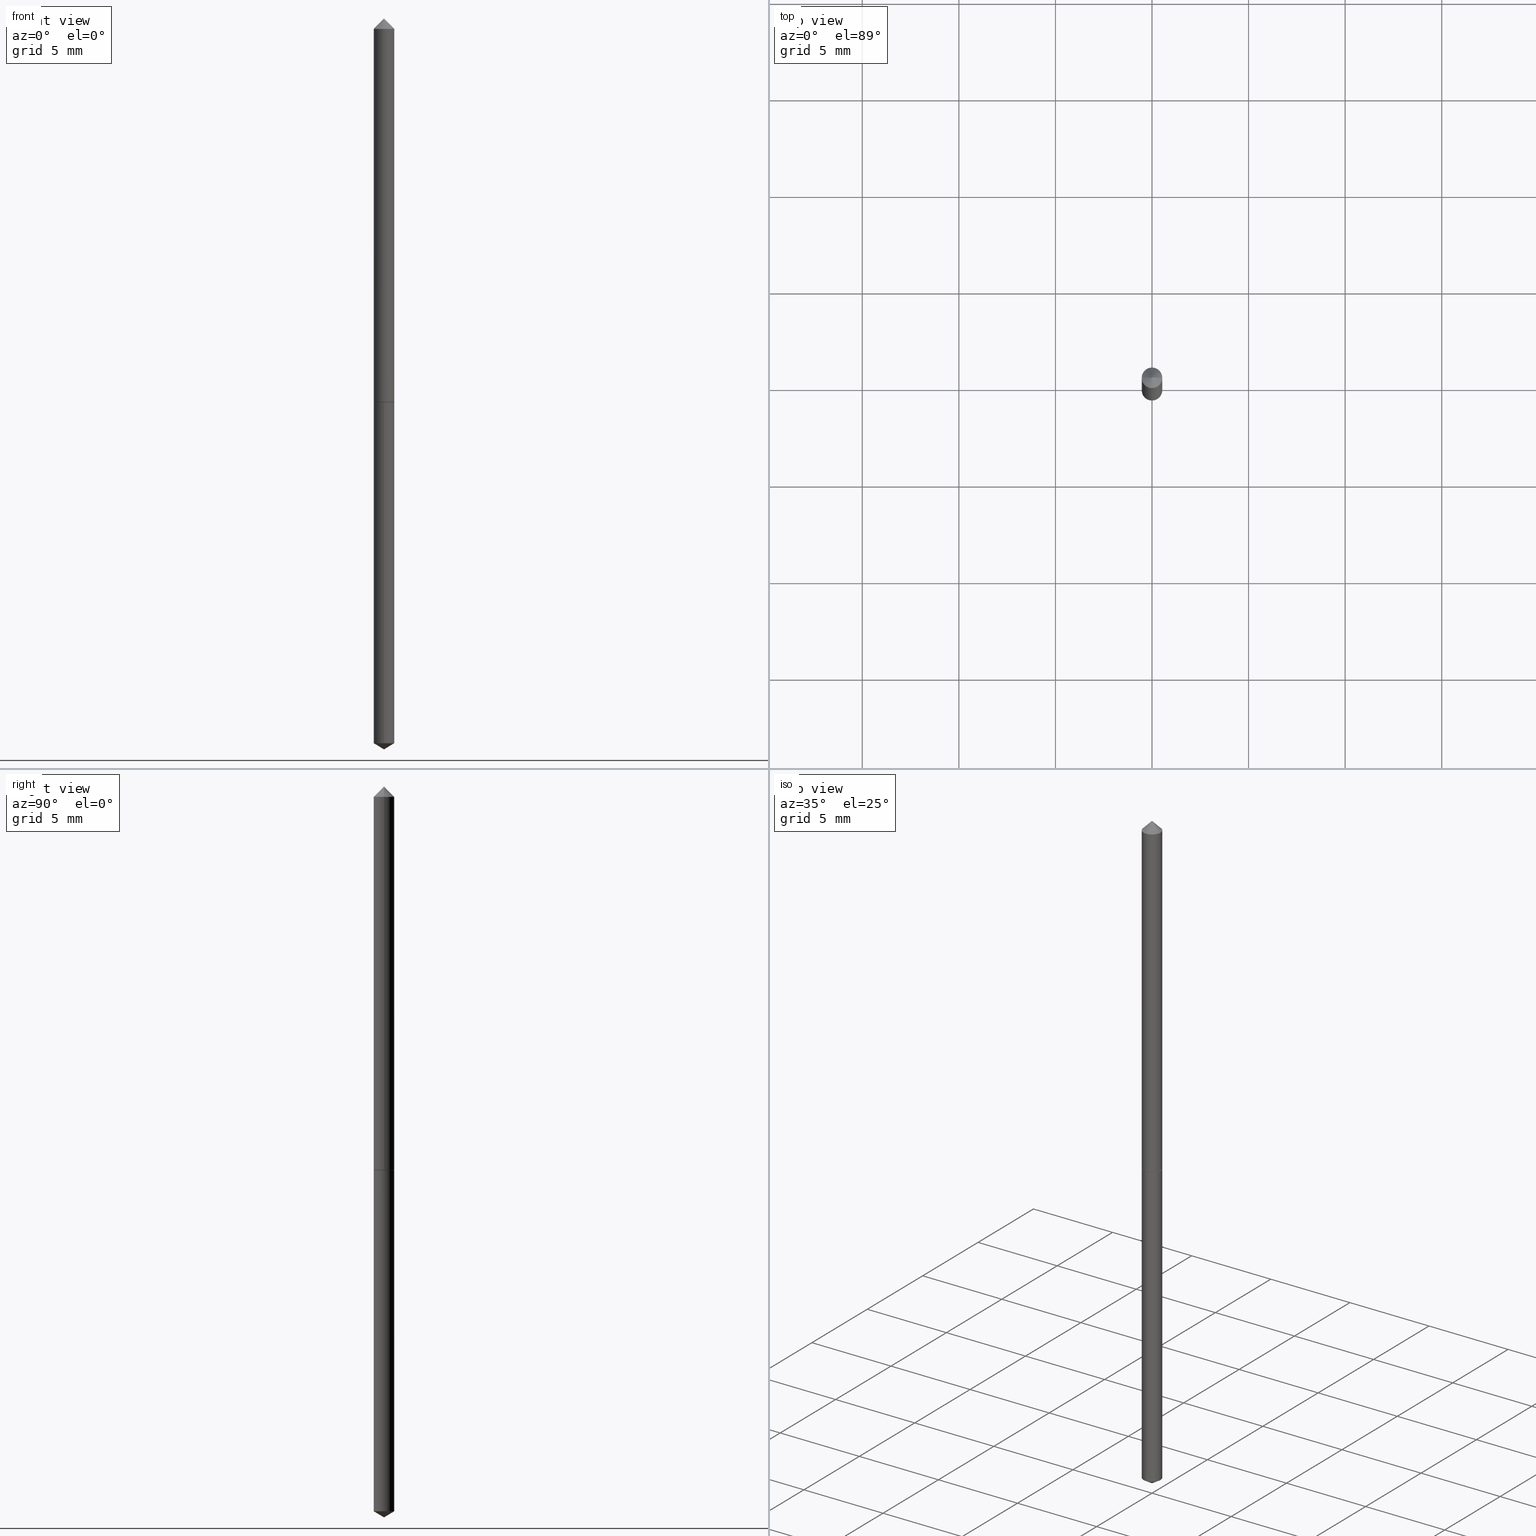
[diagram: canonical four-view strip — front | top / right | iso, engineering-drawing reading convention]
A machine part, canonical four-view strip (front | top / right | iso — engineering-drawing reading convention). The complete STEP part file that produces these views, byte-faithful:
ISO-10303-21;
HEADER;
FILE_DESCRIPTION (( 'STEP AP203' ),
    '1' );
FILE_NAME ('57100.STEP',
    '2024-04-22T22:08:45',
    ( '' ),
    ( '' ),
    'SwSTEP 2.0',
    'SolidWorks 2023',
    '' );
FILE_SCHEMA (( 'CONFIG_CONTROL_DESIGN' ));
ENDSEC;

DATA;
#1 = CARTESIAN_POINT ( 'NONE',  ( -0.02100000000000000824, 3.753342439256262871E-17, -0.03125000000000020817 ) ) ;
#2 = APPROVAL ( #357, 'UNSPECIFIED' ) ;
#3 = DIRECTION ( 'NONE',  ( -5.985567269335908147E-15, -0.8571673007021055612, 0.5150380749100652578 ) ) ;
#4 = CARTESIAN_POINT ( 'NONE',  ( 3.637357827753472311E-29, -5.193149454724271505E-15, -1.487381927000421156 ) ) ;
#5 = LOCAL_TIME ( 18, 8, 45.00000000000000000, #355 ) ;
#6 = MANIFOLD_SOLID_BREP ( 'Body-Move/Copy2[1]', #242 ) ;
#7 = CARTESIAN_POINT ( 'NONE',  ( 1.935588560095536193E-29, -2.763507479694350590E-15, -0.7915000000000002034 ) ) ;
#8 = ORIENTED_EDGE ( 'NONE', *, *, #346, .T. ) ;
#9 = DIRECTION ( 'NONE',  ( -2.445468806185136597E-29, 3.491481338843145583E-15, 1.000000000000000000 ) ) ;
#10 = VERTEX_POINT ( 'NONE', #68 ) ;
#11 = EDGE_CURVE ( 'NONE', #291, #173, #98, .T. ) ;
#12 = CONICAL_SURFACE ( 'NONE', #45, 0.02100000000000009845, 0.7853981633970726906 ) ;
#13 = CALENDAR_DATE ( 2024, 22, 4 ) ;
#14 = CALENDAR_DATE ( 2024, 22, 4 ) ;
#15 = ORIENTED_EDGE ( 'NONE', *, *, #122, .F. ) ;
#16 = DATE_AND_TIME ( #235, #259 ) ;
#17 = EDGE_LOOP ( 'NONE', ( #128, #23, #89, #185 ) ) ;
#18 = CC_DESIGN_PERSON_AND_ORGANIZATION_ASSIGNMENT ( #123, #206, ( #268 ) ) ;
#19 = CLOSED_SHELL ( 'NONE', ( #233, #93, #244, #223, #237, #217, #262 ) ) ;
#20 = DATE_AND_TIME ( #14, #282 ) ;
#21 = ORIENTED_EDGE ( 'NONE', *, *, #289, .F. ) ;
#22 = CALENDAR_DATE ( 2024, 22, 4 ) ;
#23 = ORIENTED_EDGE ( 'NONE', *, *, #76, .T. ) ;
#24 = ORIENTED_EDGE ( 'NONE', *, *, #141, .F. ) ;
#25 = LINE ( 'NONE', #1, #111 ) ;
#26 = AXIS2_PLACEMENT_3D ( 'NONE', #230, #115, #35 ) ;
#27 = PLANE ( 'NONE',  #179 ) ;
#28 = LINE ( 'NONE', #222, #161 ) ;
#29 = DIRECTION ( 'NONE',  ( 1.000000000000000000, -6.982962677686265922E-15, 4.876176775795935793E-29 ) ) ;
#30 = DIRECTION ( 'NONE',  ( -6.982962677686265922E-15, -1.000000000000000000, 3.468864327941669550E-15 ) ) ;
#31 = LINE ( 'NONE', #336, #231 ) ;
#32 = CARTESIAN_POINT ( 'NONE',  ( 0.02050000000000016392, -2.908403955256342486E-15, -0.7920000000000004814 ) ) ;
#33 = CIRCLE ( 'NONE', #229, 0.02100000000000009845 ) ;
#34 = CC_DESIGN_PERSON_AND_ORGANIZATION_ASSIGNMENT ( #347, #181, ( #268 ) ) ;
#35 = DIRECTION ( 'NONE',  ( 6.982962677686265922E-15, 1.000000000000000000, -3.491457197965155630E-15 ) ) ;
#36 = ORIENTED_EDGE ( 'NONE', *, *, #101, .T. ) ;
#37 = DIRECTION ( 'NONE',  ( -6.982962677686265133E-15, -1.000000000000000000, 0.000000000000000000 ) ) ;
#38 = ORIENTED_EDGE ( 'NONE', *, *, #131, .F. ) ;
#39 = CIRCLE ( 'NONE', #58, 0.02100000000000000477 ) ;
#40 = APPROVAL_DATE_TIME ( #265, #2 ) ;
#41 = VERTEX_POINT ( 'NONE', #42 ) ;
#42 = CARTESIAN_POINT ( 'NONE',  ( 2.506605526339781470E-31, -3.578768372314248100E-17, -0.01025000000000006635 ) ) ;
#43 = APPLICATION_PROTOCOL_DEFINITION ( 'international standard', 'config_control_design', 1994, #200 ) ;
#44 = ORIENTED_EDGE ( 'NONE', *, *, #280, .T. ) ;
#45 = AXIS2_PLACEMENT_3D ( 'NONE', #7, #114, #312 ) ;
#46 = COORDINATED_UNIVERSAL_TIME_OFFSET ( 5, 0, .BEHIND. ) ;
#47 = AXIS2_PLACEMENT_3D ( 'NONE', #258, #256, #60 ) ;
#48 = DIRECTION ( 'NONE',  ( -2.445485663670137245E-29, 3.491457197965155630E-15, 1.000000000000000000 ) ) ;
#49 = EDGE_LOOP ( 'NONE', ( #94, #207, #151 ) ) ;
#50 = LINE ( 'NONE', #333, #342 ) ;
#51 = CARTESIAN_POINT ( 'NONE',  ( 0.02100000000000009845, -2.910149695925762806E-15, -0.7915000000000002034 ) ) ;
#52 = APPROVAL_PERSON_ORGANIZATION ( #71, #324, #260 ) ;
#53 = CARTESIAN_POINT ( 'NONE',  ( 3.637357827753472311E-29, -5.193149454724271505E-15, -1.487381927000421156 ) ) ;
#54 = CARTESIAN_POINT ( 'NONE',  ( 1.492139745096575085E-16, 0.02099999999999723616, -0.7920000000000003704 ) ) ;
#55 = APPLICATION_CONTEXT ( 'configuration controlled 3d designs of mechanical parts and assemblies' ) ;
#56 = DIRECTION ( 'NONE',  ( -6.982962677686265133E-15, -1.000000000000000000, 6.504399984914910847E-15 ) ) ;
#57 = CIRCLE ( 'NONE', #137, 0.02100000000000000477 ) ;
#58 = AXIS2_PLACEMENT_3D ( 'NONE', #4, #228, #37 ) ;
#59 = FACE_OUTER_BOUND ( 'NONE', #17, .T. ) ;
#60 = DIRECTION ( 'NONE',  ( 1.000000000000000000, -6.982962677686265922E-15, 0.000000000000000000 ) ) ;
#61 = CIRCLE ( 'NONE', #353, 0.02050000000000016392 ) ;
#62 = CARTESIAN_POINT ( 'NONE',  ( 3.668201793248964874E-29, -5.237224036098469478E-15, -1.500000000000000222 ) ) ;
#63 = FACE_OUTER_BOUND ( 'NONE', #356, .T. ) ;
#64 = ADVANCED_BREP_SHAPE_REPRESENTATION ( '57100', ( #6, #126, #251 ), #210 ) ;
#65 = PERSON_AND_ORGANIZATION ( #307, #162 ) ;
#66 = ORIENTED_EDGE ( 'NONE', *, *, #76, .F. ) ;
#67 = CC_DESIGN_APPROVAL ( #324, ( #287 ) ) ;
#68 = CARTESIAN_POINT ( 'NONE',  ( 1.492139745096574345E-16, 0.02099999999999481101, -1.487381927000421156 ) ) ;
#69 = PERSON_AND_ORGANIZATION ( #307, #162 ) ;
#70 = FACE_OUTER_BOUND ( 'NONE', #313, .T. ) ;
#71 = PERSON_AND_ORGANIZATION ( #307, #162 ) ;
#72 = ORIENTED_EDGE ( 'NONE', *, *, #11, .T. ) ;
#73 = APPROVAL_PERSON_ORGANIZATION ( #69, #2, #213 ) ;
#74 = APPROVAL_STATUS ( 'not_yet_approved' ) ;
#75 = ORIENTED_EDGE ( 'NONE', *, *, #318, .F. ) ;
#76 = EDGE_CURVE ( 'NONE', #152, #266, #158, .T. ) ;
#77 = CARTESIAN_POINT ( 'NONE',  ( -0.02050000000000016392, -2.616942732358839831E-15, -0.7920000000000004814 ) ) ;
#78 = CARTESIAN_POINT ( 'NONE',  ( 0.02100000000000005335, -1.466422162314119944E-16, 1.023997122917149277E-30 ) ) ;
#79 = ADVANCED_FACE ( 'NONE', ( #319 ), #326, .T. ) ;
#80 = DIRECTION ( 'NONE',  ( -2.445468806185136597E-29, 3.491481338843145583E-15, 1.000000000000000000 ) ) ;
#81 = DIRECTION ( 'NONE',  ( 1.000000000000000000, -6.982962677686267499E-15, 4.876176775795936353E-29 ) ) ;
#82 = DIRECTION ( 'NONE',  ( 6.090539988449743726E-15, 0.8571673007021091140, 0.5150380749100593736 ) ) ;
#83 =( LENGTH_UNIT ( ) NAMED_UNIT ( * ) SI_UNIT ( $, .METRE. ) );
#84 = CIRCLE ( 'NONE', #193, 0.02100000000000009845 ) ;
#85 = CC_DESIGN_APPROVAL ( #292, ( #268 ) ) ;
#86 = DIRECTION ( 'NONE',  ( -2.445468806185136597E-29, 3.491481338843145583E-15, 1.000000000000000000 ) ) ;
#87 = ORIENTED_EDGE ( 'NONE', *, *, #175, .F. ) ;
#88 = CARTESIAN_POINT ( 'NONE',  ( -9.261074799224248748E-28, 1.322217398852546967E-13, 37.87007874015748143 ) ) ;
#89 = ORIENTED_EDGE ( 'NONE', *, *, #169, .F. ) ;
#90 = AXIS2_PLACEMENT_3D ( 'NONE', #130, #218, #197 ) ;
#91 = CC_DESIGN_PERSON_AND_ORGANIZATION_ASSIGNMENT ( #65, #286, ( #287 ) ) ;
#92 = AXIS2_PLACEMENT_3D ( 'NONE', #246, #362, #56 ) ;
#93 = ADVANCED_FACE ( 'NONE', ( #70 ), #184, .T. ) ;
#94 = ORIENTED_EDGE ( 'NONE', *, *, #211, .F. ) ;
#95 = MECHANICAL_CONTEXT ( 'NONE', #55, 'mechanical' ) ;
#96 = VERTEX_POINT ( 'NONE', #112 ) ;
#97 = APPROVAL_DATE_TIME ( #20, #324 ) ;
#98 = LINE ( 'NONE', #105, #250 ) ;
#99 = AXIS2_PLACEMENT_3D ( 'NONE', #300, #359, #136 ) ;
#100 = DATE_AND_TIME ( #22, #194 ) ;
#101 = EDGE_CURVE ( 'NONE', #129, #173, #57, .T. ) ;
#102 = ORIENTED_EDGE ( 'NONE', *, *, #191, .T. ) ;
#103 = ORIENTED_EDGE ( 'NONE', *, *, #247, .T. ) ;
#104 = COORDINATED_UNIVERSAL_TIME_OFFSET ( 5, 0, .BEHIND. ) ;
#105 = CARTESIAN_POINT ( 'NONE',  ( -1.466422162313922235E-16, -0.02100000000000276992, -0.7920000000000000373 ) ) ;
#106 = VECTOR ( 'NONE', #241, 39.37007874015748143 ) ;
#107 = VECTOR ( 'NONE', #285, 39.37007874015748143 ) ;
#108 = FACE_OUTER_BOUND ( 'NONE', #239, .T. ) ;
#109 = CARTESIAN_POINT ( 'NONE',  ( -1.748189418683980752E-29, -8.042383978856665644E-15, -0.7920000000000003704 ) ) ;
#110 = FACE_OUTER_BOUND ( 'NONE', #49, .T. ) ;
#111 = VECTOR ( 'NONE', #134, 39.37007874015748143 ) ;
#112 = CARTESIAN_POINT ( 'NONE',  ( -0.02100000000000000824, -1.287094161256977096E-15, -0.03125000000000020817 ) ) ;
#113 = CARTESIAN_POINT ( 'NONE',  ( -1.466422162313922235E-16, -0.02100000000000276992, -0.7920000000000000373 ) ) ;
#114 = DIRECTION ( 'NONE',  ( -2.445468806185136597E-29, 3.491481338843145583E-15, 1.000000000000000000 ) ) ;
#115 = DIRECTION ( 'NONE',  ( 2.445485663670137245E-29, -3.491457197965155630E-15, -1.000000000000000000 ) ) ;
#116 = DIRECTION ( 'NONE',  ( -6.982962677686265922E-15, -1.000000000000000000, 3.468864327941669550E-15 ) ) ;
#117 = DIRECTION ( 'NONE',  ( -6.982962677686265133E-15, -1.000000000000000000, 6.504399984914910847E-15 ) ) ;
#118 = PLANE ( 'NONE',  #26 ) ;
#119 = VECTOR ( 'NONE', #160, 39.37007874015748854 ) ;
#120 = CIRCLE ( 'NONE', #47, 0.02100000000000000824 ) ;
#121 = DATE_TIME_ROLE ( 'creation_date' ) ;
#122 = EDGE_CURVE ( 'NONE', #147, #10, #28, .T. ) ;
#123 = PERSON_AND_ORGANIZATION ( #307, #162 ) ;
#124 = ORIENTED_EDGE ( 'NONE', *, *, #280, .F. ) ;
#125 = CC_DESIGN_PERSON_AND_ORGANIZATION_ASSIGNMENT ( #294, #350, ( #144 ) ) ;
#126 = MANIFOLD_SOLID_BREP ( 'Body-Move/Copy2[2]', #19 ) ;
#127 = APPROVAL_STATUS ( 'not_yet_approved' ) ;
#128 = ORIENTED_EDGE ( 'NONE', *, *, #276, .T. ) ;
#129 = VERTEX_POINT ( 'NONE', #54 ) ;
#130 = CARTESIAN_POINT ( 'NONE',  ( 0.000000000000000000, 0.000000000000000000, 0.000000000000000000 ) ) ;
#131 = EDGE_CURVE ( 'NONE', #212, #261, #331, .T. ) ;
#132 = CARTESIAN_POINT ( 'NONE',  ( -0.02100000000000009845, -2.614293505184729024E-15, -0.7915000000000002034 ) ) ;
#133 = VECTOR ( 'NONE', #3, 39.37007874015748854 ) ;
#134 = DIRECTION ( 'NONE',  ( -0.7071067811865453523, 2.468850131082234184E-15, -0.7071067811865496822 ) ) ;
#135 = CYLINDRICAL_SURFACE ( 'NONE', #186, 0.02100000000000005335 ) ;
#136 = DIRECTION ( 'NONE',  ( 1.000000000000000000, -6.982962677686265922E-15, 0.000000000000000000 ) ) ;
#137 = AXIS2_PLACEMENT_3D ( 'NONE', #192, #196, #167 ) ;
#138 = CONICAL_SURFACE ( 'NONE', #306, 0.02100000000000000824, 0.7853981633974452814 ) ;
#139 = CARTESIAN_POINT ( 'NONE',  ( 7.642090019328602662E-31, -1.091087918388490267E-16, -0.03125000000000020817 ) ) ;
#140 = CARTESIAN_POINT ( 'NONE',  ( -0.02100000000000009845, -2.614293505184729024E-15, -0.7915000000000002034 ) ) ;
#141 = EDGE_CURVE ( 'NONE', #261, #96, #267, .T. ) ;
#142 = DIRECTION ( 'NONE',  ( -6.982962677686265133E-15, -1.000000000000000000, 0.000000000000000000 ) ) ;
#143 =( NAMED_UNIT ( * ) SI_UNIT ( $, .STERADIAN. ) SOLID_ANGLE_UNIT ( ) );
#144 = PRODUCT_DEFINITION ( 'UNKNOWN', '', #268, #334 ) ;
#145 = ADVANCED_FACE ( 'NONE', ( #108 ), #352, .T. ) ;
#146 = CARTESIAN_POINT ( 'NONE',  ( -0.02100000000000005335, 1.492139745096214181E-16, -1.032976368953532787E-30 ) ) ;
#147 = VERTEX_POINT ( 'NONE', #304 ) ;
#148 = CARTESIAN_POINT ( 'NONE',  ( 1.936811294498629274E-29, -2.765253220363772882E-15, -0.7920000000000004814 ) ) ;
#149 = ORIENTED_EDGE ( 'NONE', *, *, #131, .T. ) ;
#150 = COORDINATED_UNIVERSAL_TIME_OFFSET ( 5, 0, .BEHIND. ) ;
#151 = ORIENTED_EDGE ( 'NONE', *, *, #141, .T. ) ;
#152 = VERTEX_POINT ( 'NONE', #77 ) ;
#153 = PERSON_AND_ORGANIZATION ( #307, #162 ) ;
#154 = EDGE_LOOP ( 'NONE', ( #351, #36 ) ) ;
#155 = VECTOR ( 'NONE', #270, 39.37007874015748854 ) ;
#156 = CONICAL_SURFACE ( 'NONE', #187, 65.52281426576701051, 1.029744258676644986 ) ;
#157 = APPLICATION_PROTOCOL_DEFINITION ( 'international standard', 'config_control_design', 1994, #55 ) ;
#158 = LINE ( 'NONE', #132, #155 ) ;
#159 = ORIENTED_EDGE ( 'NONE', *, *, #249, .F. ) ;
#160 = DIRECTION ( 'NONE',  ( 0.7071067811862817853, -2.468850131079474354E-15, 0.7071067811868130271 ) ) ;
#161 = VECTOR ( 'NONE', #82, 39.37007874015748854 ) ;
#162 = ORGANIZATION ( 'UNSPECIFIED', 'UNSPECIFIED', '' ) ;
#163 = CARTESIAN_POINT ( 'NONE',  ( 0.02100000000000009845, -2.910149695925762806E-15, -0.7915000000000002034 ) ) ;
#164 = DIRECTION ( 'NONE',  ( 0.7071067811865453523, -7.319954787623248157E-15, -0.7071067811865496822 ) ) ;
#165 = DIRECTION ( 'NONE',  ( -2.445468806185136597E-29, 3.491481338843145583E-15, 1.000000000000000000 ) ) ;
#166 = LOCAL_TIME ( 18, 8, 45.00000000000000000, #104 ) ;
#167 = DIRECTION ( 'NONE',  ( -6.982962677686265133E-15, -1.000000000000000000, 6.504399984914910847E-15 ) ) ;
#168 =( CONVERSION_BASED_UNIT ( 'INCH', #308 ) LENGTH_UNIT ( ) NAMED_UNIT ( #320 ) );
#169 = EDGE_CURVE ( 'NONE', #212, #266, #84, .T. ) ;
#170 = CARTESIAN_POINT ( 'NONE',  ( 7.642090019328602662E-31, -1.091087918388490267E-16, -0.03125000000000020817 ) ) ;
#171 = AXIS2_PLACEMENT_3D ( 'NONE', #199, #86, #255 ) ;
#172 = DIRECTION ( 'NONE',  ( 1.000000000000000000, -6.982962677686276966E-15, 0.000000000000000000 ) ) ;
#173 = VERTEX_POINT ( 'NONE', #113 ) ;
#174 = DIRECTION ( 'NONE',  ( 2.445468806185136597E-29, -3.491481338843145583E-15, -1.000000000000000000 ) ) ;
#175 = EDGE_CURVE ( 'NONE', #41, #261, #50, .T. ) ;
#176 = APPROVAL_DATE_TIME ( #315, #292 ) ;
#177 = EDGE_LOOP ( 'NONE', ( #209, #216 ) ) ;
#178 = EDGE_CURVE ( 'NONE', #295, #212, #363, .T. ) ;
#179 = AXIS2_PLACEMENT_3D ( 'NONE', #109, #278, #29 ) ;
#180 = CIRCLE ( 'NONE', #301, 0.02100000000000000477 ) ;
#181 = PERSON_AND_ORGANIZATION_ROLE ( 'creator' ) ;
#182 = DIRECTION ( 'NONE',  ( -6.982962677686265133E-15, -1.000000000000000000, 6.504399984914910847E-15 ) ) ;
#183 = DIRECTION ( 'NONE',  ( 1.000000000000000000, 0.000000000000000000, 0.000000000000000000 ) ) ;
#184 = CYLINDRICAL_SURFACE ( 'NONE', #90, 0.02100000000000005335 ) ;
#185 = ORIENTED_EDGE ( 'NONE', *, *, #178, .F. ) ;
#186 = AXIS2_PLACEMENT_3D ( 'NONE', #275, #165, #81 ) ;
#187 = AXIS2_PLACEMENT_3D ( 'NONE', #88, #201, #116 ) ;
#188 = CALENDAR_DATE ( 2024, 22, 4 ) ;
#189 = EDGE_LOOP ( 'NONE', ( #124, #102, #149, #323 ) ) ;
#190 = CARTESIAN_POINT ( 'NONE',  ( 1.935588560095536193E-29, -2.763507479694350590E-15, -0.7915000000000002034 ) ) ;
#191 = EDGE_CURVE ( 'NONE', #266, #212, #33, .T. ) ;
#192 = CARTESIAN_POINT ( 'NONE',  ( 1.936811294498628434E-29, -2.765253220363771699E-15, -0.7920000000000001483 ) ) ;
#193 = AXIS2_PLACEMENT_3D ( 'NONE', #190, #299, #224 ) ;
#194 = LOCAL_TIME ( 18, 8, 45.00000000000000000, #150 ) ;
#195 = DIRECTION ( 'NONE',  ( 1.000000000000000000, -6.982962677686277755E-15, 0.000000000000000000 ) ) ;
#196 = DIRECTION ( 'NONE',  ( -2.445485663670137245E-29, 3.491457197965156024E-15, 1.000000000000000000 ) ) ;
#197 = DIRECTION ( 'NONE',  ( 1.000000000000000000, -6.982962677686267499E-15, 4.876176775795936353E-29 ) ) ;
#198 = APPROVAL_PERSON_ORGANIZATION ( #325, #292, #269 ) ;
#199 = CARTESIAN_POINT ( 'NONE',  ( 1.936811294498629274E-29, -2.765253220363772882E-15, -0.7920000000000004814 ) ) ;
#200 = APPLICATION_CONTEXT ( 'configuration controlled 3d designs of mechanical parts and assemblies' ) ;
#201 = DIRECTION ( 'NONE',  ( -2.445485663670137245E-29, 3.491457197965156024E-15, 1.000000000000000000 ) ) ;
#202 = AXIS2_PLACEMENT_3D ( 'NONE', #298, #358, #182 ) ;
#203 = DIRECTION ( 'NONE',  ( -2.445485663670137245E-29, 3.491457197965155630E-15, 1.000000000000000000 ) ) ;
#204 = CIRCLE ( 'NONE', #171, 0.02050000000000016392 ) ;
#205 = EDGE_LOOP ( 'NONE', ( #15, #293, #240 ) ) ;
#206 = PERSON_AND_ORGANIZATION_ROLE ( 'design_supplier' ) ;
#207 = ORIENTED_EDGE ( 'NONE', *, *, #175, .T. ) ;
#208 = SHAPE_DEFINITION_REPRESENTATION ( #274, #64 ) ;
#209 = ORIENTED_EDGE ( 'NONE', *, *, #276, .F. ) ;
#210 =( GEOMETRIC_REPRESENTATION_CONTEXT ( 3 ) GLOBAL_UNCERTAINTY_ASSIGNED_CONTEXT ( ( #309 ) ) GLOBAL_UNIT_ASSIGNED_CONTEXT ( ( #168, #281, #143 ) ) REPRESENTATION_CONTEXT ( 'NONE', 'WORKASPACE' ) );
#211 = EDGE_CURVE ( 'NONE', #41, #96, #25, .T. ) ;
#212 = VERTEX_POINT ( 'NONE', #163 ) ;
#213 = APPROVAL_ROLE ( '' ) ;
#214 = ORIENTED_EDGE ( 'NONE', *, *, #346, .F. ) ;
#215 = CARTESIAN_POINT ( 'NONE',  ( 0.000000000000000000, 0.000000000000000000, 0.000000000000000000 ) ) ;
#216 = ORIENTED_EDGE ( 'NONE', *, *, #247, .F. ) ;
#217 = ADVANCED_FACE ( 'NONE', ( #221 ), #135, .T. ) ;
#218 = DIRECTION ( 'NONE',  ( -2.445468806185136597E-29, 3.491481338843145583E-15, 1.000000000000000000 ) ) ;
#219 = CC_DESIGN_DATE_AND_TIME_ASSIGNMENT ( #16, #121, ( #144 ) ) ;
#220 = CYLINDRICAL_SURFACE ( 'NONE', #92, 0.02100000000000000477 ) ;
#221 = FACE_OUTER_BOUND ( 'NONE', #189, .T. ) ;
#222 = CARTESIAN_POINT ( 'NONE',  ( 3.668228729652474143E-29, -5.237185796947734037E-15, -1.500000000000000222 ) ) ;
#223 = ADVANCED_FACE ( 'NONE', ( #361 ), #27, .F. ) ;
#224 = DIRECTION ( 'NONE',  ( 1.000000000000000000, -6.982962677686277755E-15, 0.000000000000000000 ) ) ;
#225 = LINE ( 'NONE', #146, #107 ) ;
#226 = FACE_OUTER_BOUND ( 'NONE', #205, .T. ) ;
#227 = ADVANCED_FACE ( 'NONE', ( #302 ), #220, .T. ) ;
#228 = DIRECTION ( 'NONE',  ( -2.445485663670137245E-29, 3.491457197965156024E-15, 1.000000000000000000 ) ) ;
#229 = AXIS2_PLACEMENT_3D ( 'NONE', #248, #303, #272 ) ;
#230 = CARTESIAN_POINT ( 'NONE',  ( 1.936811294498628434E-29, -2.765253220363771699E-15, -0.7920000000000001483 ) ) ;
#231 = VECTOR ( 'NONE', #203, 39.37007874015748143 ) ;
#232 = ORIENTED_EDGE ( 'NONE', *, *, #318, .T. ) ;
#233 = ADVANCED_FACE ( 'NONE', ( #110 ), #311, .T. ) ;
#234 = DIRECTION ( 'NONE',  ( 0.000000000000000000, 0.000000000000000000, 1.000000000000000000 ) ) ;
#235 = CALENDAR_DATE ( 2024, 22, 4 ) ;
#236 = ORIENTED_EDGE ( 'NONE', *, *, #254, .T. ) ;
#237 = ADVANCED_FACE ( 'NONE', ( #279 ), #364, .T. ) ;
#238 = ORIENTED_EDGE ( 'NONE', *, *, #11, .F. ) ;
#239 = EDGE_LOOP ( 'NONE', ( #159, #345, #75 ) ) ;
#240 = ORIENTED_EDGE ( 'NONE', *, *, #243, .F. ) ;
#241 = DIRECTION ( 'NONE',  ( -2.445468806185136877E-29, 3.491481338843145188E-15, 1.000000000000000000 ) ) ;
#242 = CLOSED_SHELL ( 'NONE', ( #79, #145, #297, #227, #349 ) ) ;
#243 = EDGE_CURVE ( 'NONE', #10, #291, #180, .T. ) ;
#244 = ADVANCED_FACE ( 'NONE', ( #59 ), #12, .T. ) ;
#245 = DIRECTION ( 'NONE',  ( -2.445485663670137245E-29, 3.491457197965156024E-15, 1.000000000000000000 ) ) ;
#246 = CARTESIAN_POINT ( 'NONE',  ( 1.936811294498628434E-29, -2.765253220363771699E-15, -0.7920000000000001483 ) ) ;
#247 = EDGE_CURVE ( 'NONE', #152, #295, #204, .T. ) ;
#248 = CARTESIAN_POINT ( 'NONE',  ( 1.935588560095536193E-29, -2.763507479694350590E-15, -0.7915000000000002034 ) ) ;
#249 = EDGE_CURVE ( 'NONE', #147, #291, #253, .T. ) ;
#250 = VECTOR ( 'NONE', #48, 39.37007874015748143 ) ;
#251 = AXIS2_PLACEMENT_3D ( 'NONE', #215, #234, #183 ) ;
#252 = DIRECTION ( 'NONE',  ( 2.445468806185136597E-29, -3.491481338843145583E-15, -1.000000000000000000 ) ) ;
#253 = LINE ( 'NONE', #62, #133 ) ;
#254 = EDGE_CURVE ( 'NONE', #96, #261, #120, .T. ) ;
#255 = DIRECTION ( 'NONE',  ( 1.000000000000000000, -6.982962677686276966E-15, 0.000000000000000000 ) ) ;
#256 = DIRECTION ( 'NONE',  ( -2.445468806185136597E-29, 3.491481338843145583E-15, 1.000000000000000000 ) ) ;
#257 = EDGE_LOOP ( 'NONE', ( #232, #8, #21, #238 ) ) ;
#258 = CARTESIAN_POINT ( 'NONE',  ( 7.642090019328602662E-31, -1.091087918388490267E-16, -0.03125000000000020817 ) ) ;
#259 = LOCAL_TIME ( 18, 8, 45.00000000000000000, #46 ) ;
#260 = APPROVAL_ROLE ( '' ) ;
#261 = VERTEX_POINT ( 'NONE', #314 ) ;
#262 = ADVANCED_FACE ( 'NONE', ( #63 ), #138, .T. ) ;
#263 = PERSON_AND_ORGANIZATION_ROLE ( 'design_owner' ) ;
#264 = ORIENTED_EDGE ( 'NONE', *, *, #243, .T. ) ;
#265 = DATE_AND_TIME ( #13, #166 ) ;
#266 = VERTEX_POINT ( 'NONE', #140 ) ;
#267 = CIRCLE ( 'NONE', #99, 0.02100000000000000824 ) ;
#268 = PRODUCT_DEFINITION_FORMATION_WITH_SPECIFIED_SOURCE ( 'ANY', '', #329, .NOT_KNOWN. ) ;
#269 = APPROVAL_ROLE ( '' ) ;
#270 = DIRECTION ( 'NONE',  ( -0.7071067811862817853, 7.493145998869393328E-15, 0.7071067811868130271 ) ) ;
#271 = EDGE_LOOP ( 'NONE', ( #66, #103, #321, #341 ) ) ;
#272 = DIRECTION ( 'NONE',  ( 1.000000000000000000, -6.982962677686277755E-15, 0.000000000000000000 ) ) ;
#273 = CC_DESIGN_SECURITY_CLASSIFICATION ( #287, ( #268 ) ) ;
#274 = PRODUCT_DEFINITION_SHAPE ( 'NONE', 'NONE',  #144 ) ;
#275 = CARTESIAN_POINT ( 'NONE',  ( 0.000000000000000000, 0.000000000000000000, 0.000000000000000000 ) ) ;
#276 = EDGE_CURVE ( 'NONE', #295, #152, #61, .T. ) ;
#277 = DIRECTION ( 'NONE',  ( -2.445485663670137245E-29, 3.491457197965156024E-15, 1.000000000000000000 ) ) ;
#278 = DIRECTION ( 'NONE',  ( -2.438088387897960049E-29, 3.491481338843145188E-15, 1.000000000000000000 ) ) ;
#279 = FACE_OUTER_BOUND ( 'NONE', #271, .T. ) ;
#280 = EDGE_CURVE ( 'NONE', #266, #96, #225, .T. ) ;
#281 =( NAMED_UNIT ( * ) PLANE_ANGLE_UNIT ( ) SI_UNIT ( $, .RADIAN. ) );
#282 = LOCAL_TIME ( 18, 8, 45.00000000000000000, #317 ) ;
#283 = CARTESIAN_POINT ( 'NONE',  ( 1.936811294498628434E-29, -2.765253220363771699E-15, -0.7920000000000001483 ) ) ;
#284 = DIRECTION ( 'NONE',  ( -2.445485663670137245E-29, 3.491457197965156024E-15, 1.000000000000000000 ) ) ;
#285 = DIRECTION ( 'NONE',  ( -2.445468806185136877E-29, 3.491481338843145188E-15, 1.000000000000000000 ) ) ;
#286 = PERSON_AND_ORGANIZATION_ROLE ( 'classification_officer' ) ;
#287 = SECURITY_CLASSIFICATION ( '', '', #290 ) ;
#288 = ORIENTED_EDGE ( 'NONE', *, *, #169, .T. ) ;
#289 = EDGE_CURVE ( 'NONE', #173, #129, #327, .T. ) ;
#290 = SECURITY_CLASSIFICATION_LEVEL ( 'unclassified' ) ;
#291 = VERTEX_POINT ( 'NONE', #338 ) ;
#292 = APPROVAL ( #74, 'UNSPECIFIED' ) ;
#293 = ORIENTED_EDGE ( 'NONE', *, *, #249, .T. ) ;
#294 = PERSON_AND_ORGANIZATION ( #307, #162 ) ;
#295 = VERTEX_POINT ( 'NONE', #32 ) ;
#296 = AXIS2_PLACEMENT_3D ( 'NONE', #332, #80, #195 ) ;
#297 = ADVANCED_FACE ( 'NONE', ( #226 ), #156, .T. ) ;
#298 = CARTESIAN_POINT ( 'NONE',  ( 1.936811294498628434E-29, -2.765253220363771699E-15, -0.7920000000000001483 ) ) ;
#299 = DIRECTION ( 'NONE',  ( -2.445468806185136597E-29, 3.491481338843145583E-15, 1.000000000000000000 ) ) ;
#300 = CARTESIAN_POINT ( 'NONE',  ( 7.642090019328602662E-31, -1.091087918388490267E-16, -0.03125000000000020817 ) ) ;
#301 = AXIS2_PLACEMENT_3D ( 'NONE', #53, #277, #142 ) ;
#302 = FACE_OUTER_BOUND ( 'NONE', #354, .T. ) ;
#303 = DIRECTION ( 'NONE',  ( -2.445468806185136597E-29, 3.491481338843145583E-15, 1.000000000000000000 ) ) ;
#304 = CARTESIAN_POINT ( 'NONE',  ( 3.668228495505206147E-29, -5.237185796947734037E-15, -1.500000000000000222 ) ) ;
#305 = AXIS2_PLACEMENT_3D ( 'NONE', #330, #245, #30 ) ;
#306 = AXIS2_PLACEMENT_3D ( 'NONE', #170, #174, #340 ) ;
#307 = PERSON ( 'UNSPECIFIED', 'UNSPECIFIED', 'UNSPECIFIED', ('UNSPECIFIED'), ('UNSPECIFIED'), ('UNSPECIFIED') ) ;
#308 = LENGTH_MEASURE_WITH_UNIT ( LENGTH_MEASURE( 0.02539999999999999897 ), #83 );
#309 = UNCERTAINTY_MEASURE_WITH_UNIT (LENGTH_MEASURE( 1.000000000000000082E-05 ), #168, 'distance_accuracy_value', 'NONE');
#310 = CC_DESIGN_DATE_AND_TIME_ASSIGNMENT ( #100, #322, ( #287 ) ) ;
#311 = CONICAL_SURFACE ( 'NONE', #337, 0.02100000000000000824, 0.7853981633974452814 ) ;
#312 = DIRECTION ( 'NONE',  ( 1.000000000000000000, -6.982962677686277755E-15, 0.000000000000000000 ) ) ;
#313 = EDGE_LOOP ( 'NONE', ( #288, #44, #24, #38 ) ) ;
#314 = CARTESIAN_POINT ( 'NONE',  ( 0.02100000000000000824, -2.557510080702606759E-16, -0.03125000000000020817 ) ) ;
#315 = DATE_AND_TIME ( #188, #5 ) ;
#316 = ORIENTED_EDGE ( 'NONE', *, *, #101, .F. ) ;
#317 = COORDINATED_UNIVERSAL_TIME_OFFSET ( 5, 0, .BEHIND. ) ;
#318 = EDGE_CURVE ( 'NONE', #291, #10, #39, .T. ) ;
#319 = FACE_OUTER_BOUND ( 'NONE', #257, .T. ) ;
#320 = DIMENSIONAL_EXPONENTS ( 1.000000000000000000, 0.000000000000000000, 0.000000000000000000, 0.000000000000000000, 0.000000000000000000, 0.000000000000000000, 0.000000000000000000 ) ;
#321 = ORIENTED_EDGE ( 'NONE', *, *, #178, .T. ) ;
#322 = DATE_TIME_ROLE ( 'classification_date' ) ;
#323 = ORIENTED_EDGE ( 'NONE', *, *, #254, .F. ) ;
#324 = APPROVAL ( #127, 'UNSPECIFIED' ) ;
#325 = PERSON_AND_ORGANIZATION ( #307, #162 ) ;
#326 = CYLINDRICAL_SURFACE ( 'NONE', #202, 0.02100000000000000477 ) ;
#327 = CIRCLE ( 'NONE', #343, 0.02100000000000000477 ) ;
#328 = PRODUCT_RELATED_PRODUCT_CATEGORY ( 'detail', '', ( #329 ) ) ;
#329 = PRODUCT ( '57100', '57100', '', ( #95 ) ) ;
#330 = CARTESIAN_POINT ( 'NONE',  ( -9.261074799224248748E-28, 1.322217398852546967E-13, 37.87007874015748143 ) ) ;
#331 = LINE ( 'NONE', #78, #106 ) ;
#332 = CARTESIAN_POINT ( 'NONE',  ( 1.935588560095536193E-29, -2.763507479694350590E-15, -0.7915000000000002034 ) ) ;
#333 = CARTESIAN_POINT ( 'NONE',  ( 0.02100000000000000824, -2.531792497920512769E-16, -0.03125000000000020817 ) ) ;
#334 = DESIGN_CONTEXT ( 'detailed design', #200, 'design' ) ;
#335 = DIRECTION ( 'NONE',  ( -1.000000000000000000, 6.982962677686265922E-15, 0.000000000000000000 ) ) ;
#336 = CARTESIAN_POINT ( 'NONE',  ( 1.492139745096404000E-16, 0.02099999999999723616, -0.7920000000000003704 ) ) ;
#337 = AXIS2_PLACEMENT_3D ( 'NONE', #139, #252, #335 ) ;
#338 = CARTESIAN_POINT ( 'NONE',  ( -1.466422162313752877E-16, -0.02100000000000520201, -1.487381927000421156 ) ) ;
#339 = CC_DESIGN_PERSON_AND_ORGANIZATION_ASSIGNMENT ( #153, #263, ( #329 ) ) ;
#340 = DIRECTION ( 'NONE',  ( -1.000000000000000000, 6.982962677686265922E-15, 0.000000000000000000 ) ) ;
#341 = ORIENTED_EDGE ( 'NONE', *, *, #191, .F. ) ;
#342 = VECTOR ( 'NONE', #164, 39.37007874015748143 ) ;
#343 = AXIS2_PLACEMENT_3D ( 'NONE', #283, #284, #117 ) ;
#344 = FACE_OUTER_BOUND ( 'NONE', #154, .T. ) ;
#345 = ORIENTED_EDGE ( 'NONE', *, *, #122, .T. ) ;
#346 = EDGE_CURVE ( 'NONE', #10, #129, #31, .T. ) ;
#347 = PERSON_AND_ORGANIZATION ( #307, #162 ) ;
#348 = ORIENTED_EDGE ( 'NONE', *, *, #211, .T. ) ;
#349 = ADVANCED_FACE ( 'NONE', ( #344 ), #118, .F. ) ;
#350 = PERSON_AND_ORGANIZATION_ROLE ( 'creator' ) ;
#351 = ORIENTED_EDGE ( 'NONE', *, *, #289, .T. ) ;
#352 = CONICAL_SURFACE ( 'NONE', #305, 65.52281426576701051, 1.029744258676644986 ) ;
#353 = AXIS2_PLACEMENT_3D ( 'NONE', #148, #9, #172 ) ;
#354 = EDGE_LOOP ( 'NONE', ( #214, #264, #72, #316 ) ) ;
#355 = COORDINATED_UNIVERSAL_TIME_OFFSET ( 5, 0, .BEHIND. ) ;
#356 = EDGE_LOOP ( 'NONE', ( #87, #348, #236 ) ) ;
#357 = APPROVAL_STATUS ( 'not_yet_approved' ) ;
#358 = DIRECTION ( 'NONE',  ( -2.445485663670137245E-29, 3.491457197965156024E-15, 1.000000000000000000 ) ) ;
#359 = DIRECTION ( 'NONE',  ( -2.445468806185136597E-29, 3.491481338843145583E-15, 1.000000000000000000 ) ) ;
#360 = CC_DESIGN_APPROVAL ( #2, ( #144 ) ) ;
#361 = FACE_OUTER_BOUND ( 'NONE', #177, .T. ) ;
#362 = DIRECTION ( 'NONE',  ( -2.445485663670137245E-29, 3.491457197965156024E-15, 1.000000000000000000 ) ) ;
#363 = LINE ( 'NONE', #51, #119 ) ;
#364 = CONICAL_SURFACE ( 'NONE', #296, 0.02100000000000009845, 0.7853981633970726906 ) ;
ENDSEC;
END-ISO-10303-21;
